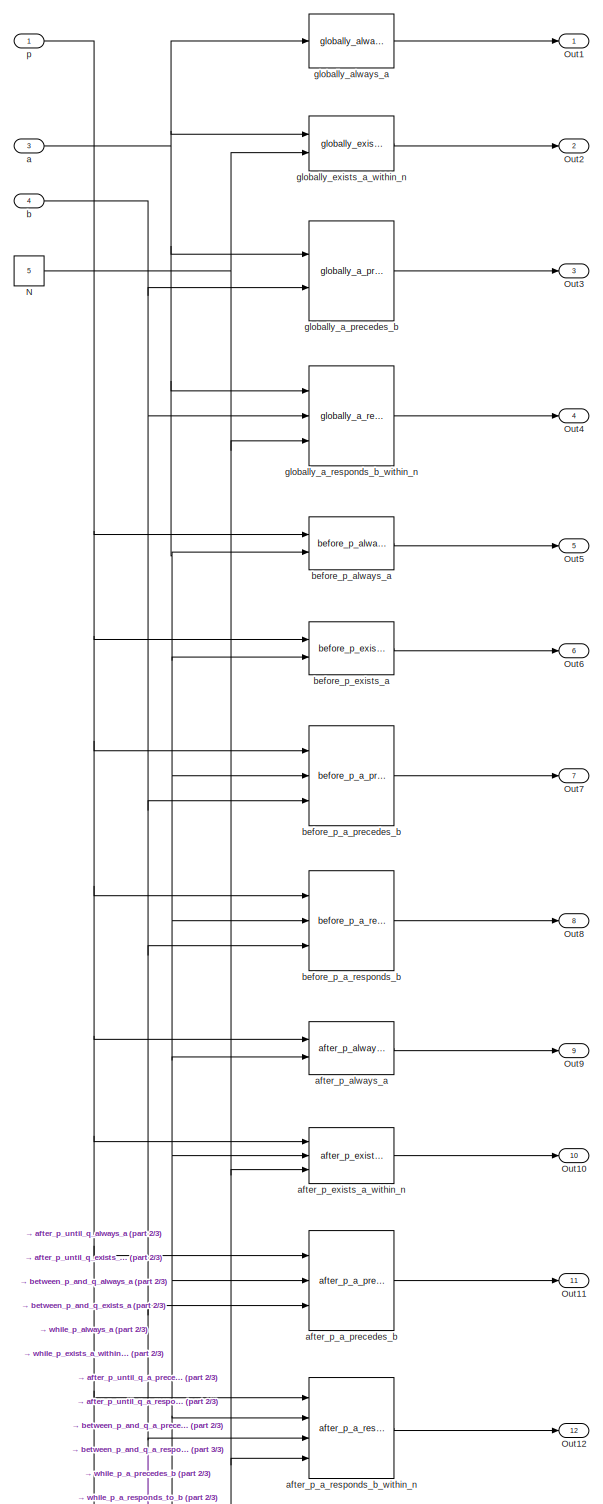
[diagram: root canvas - part 1/3, full width, top band]
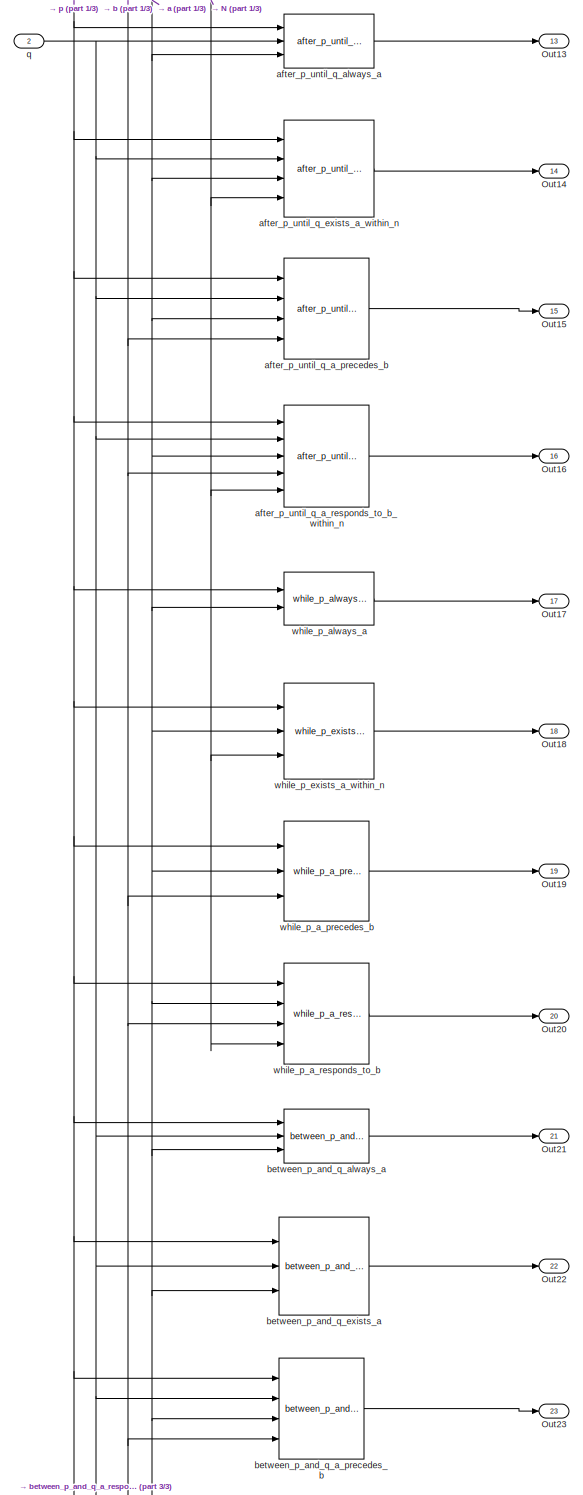
[diagram: root canvas - part 2/3, full width, bottom band]
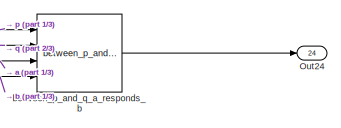
[diagram: root canvas - part 3/3, bottom right region]
MODEL slx_b7dc2ca83973
KIND model
BLOCK [Constant] N
  Value = 5
BLOCK [Outport] Out1
  IconDisplay = Port number
BLOCK [Outport] Out10
  IconDisplay = Port number
  Port = 10
BLOCK [Outport] Out11
  IconDisplay = Port number
  Port = 11
BLOCK [Outport] Out12
  IconDisplay = Port number
  Port = 12
BLOCK [Outport] Out13
  IconDisplay = Port number
  Port = 13
BLOCK [Outport] Out14
  IconDisplay = Port number
  Port = 14
BLOCK [Outport] Out15
  IconDisplay = Port number
  Port = 15
BLOCK [Outport] Out16
  IconDisplay = Port number
  Port = 16
BLOCK [Outport] Out17
  IconDisplay = Port number
  Port = 17
BLOCK [Outport] Out18
  IconDisplay = Port number
  Port = 18
BLOCK [Outport] Out19
  IconDisplay = Port number
  Port = 19
BLOCK [Outport] Out2
  IconDisplay = Port number
  Port = 2
BLOCK [Outport] Out20
  IconDisplay = Port number
  Port = 20
BLOCK [Outport] Out21
  IconDisplay = Port number
  Port = 21
BLOCK [Outport] Out22
  IconDisplay = Port number
  Port = 22
BLOCK [Outport] Out23
  IconDisplay = Port number
  Port = 23
BLOCK [Outport] Out24
  IconDisplay = Port number
  Port = 24
BLOCK [Outport] Out3
  IconDisplay = Port number
  Port = 3
BLOCK [Outport] Out4
  IconDisplay = Port number
  Port = 4
BLOCK [Outport] Out5
  IconDisplay = Port number
  Port = 5
BLOCK [Outport] Out6
  IconDisplay = Port number
  Port = 6
BLOCK [Outport] Out7
  IconDisplay = Port number
  Port = 7
BLOCK [Outport] Out8
  IconDisplay = Port number
  Port = 8
BLOCK [Outport] Out9
  IconDisplay = Port number
  Port = 9
BLOCK [Inport] a
  IconDisplay = Port number
  OutDataTypeStr = boolean
  Port = 3
BLOCK [Reference] after_p_a_precedes_b  REF=patterns_library/after_p_a_precedes_b  (lib defined in slx_1b5033acf6a4)
  Ports = [3, 1]
  SourceBlock = patterns_library/after_p_a_precedes_b
  SourceType = SubSystem
BLOCK [Reference] after_p_a_responds_b_within_n  REF=patterns_library/after_p_a_responds_b_within_n  (lib defined in slx_1b5033acf6a4)
  Ports = [4, 1]
  SourceBlock = patterns_library/after_p_a_responds_b_within_n
  SourceType = SubSystem
BLOCK [Reference] after_p_always_a  REF=patterns_library/after_p_always_a  (lib defined in slx_1b5033acf6a4)
  Ports = [2, 1]
  SourceBlock = patterns_library/after_p_always_a
  SourceType = SubSystem
BLOCK [Reference] after_p_exists_a_within_n  REF=patterns_library/after_p_exists_a_within_n  (lib defined in slx_1b5033acf6a4)
  Ports = [3, 1]
  SourceBlock = patterns_library/after_p_exists_a_within_n
  SourceType = SubSystem
BLOCK [Reference] after_p_until_q_a_precedes_b  REF=patterns_library/after_p_until_q_a_precedes_b  (lib defined in slx_1b5033acf6a4)
  Ports = [4, 1]
  SourceBlock = patterns_library/after_p_until_q_a_precedes_b
  SourceType = SubSystem
BLOCK [Reference] after_p_until_q_a_responds_to_b_within_n  REF=patterns_library/after_p_until_q_a_responds_to_b_within_n  (lib defined in slx_1b5033acf6a4)
  Ports = [5, 1]
  SourceBlock = patterns_library/after_p_until_q_a_responds_to_b_within_n
  SourceType = SubSystem
BLOCK [Reference] after_p_until_q_always_a  REF=patterns_library/after_p_until_q_always_a  (lib defined in slx_1b5033acf6a4)
  Ports = [3, 1]
  SourceBlock = patterns_library/after_p_until_q_always_a
  SourceType = SubSystem
BLOCK [Reference] after_p_until_q_exists_a_within_n  REF=patterns_library/after_p_until_q_exists_a_within_n  (lib defined in slx_1b5033acf6a4)
  Ports = [4, 1]
  SourceBlock = patterns_library/after_p_until_q_exists_a_within_n
  SourceType = SubSystem
BLOCK [Inport] b
  IconDisplay = Port number
  OutDataTypeStr = boolean
  Port = 4
BLOCK [Reference] before_p_a_precedes_b  REF=patterns_library/before_p_a_precedes_b  (lib defined in slx_1b5033acf6a4)
  Ports = [3, 1]
  SourceBlock = patterns_library/before_p_a_precedes_b
  SourceType = SubSystem
BLOCK [Reference] before_p_a_responds_b  REF=patterns_library/before_p_a_responds_b  (lib defined in slx_1b5033acf6a4)
  Ports = [3, 1]
  SourceBlock = patterns_library/before_p_a_responds_b
  SourceType = SubSystem
BLOCK [Reference] before_p_always_a  REF=patterns_library/before_p_always_a  (lib defined in slx_1b5033acf6a4)
  Ports = [2, 1]
  SourceBlock = patterns_library/before_p_always_a
  SourceType = SubSystem
BLOCK [Reference] before_p_exists_a  REF=patterns_library/before_p_exists_a  (lib defined in slx_1b5033acf6a4)
  Ports = [2, 1]
  SourceBlock = patterns_library/before_p_exists_a
  SourceType = SubSystem
BLOCK [Reference] between_p_and_q_a_precedes_b  REF=patterns_library/between_p_and_q_a_precedes_b  (lib defined in slx_1b5033acf6a4)
  Ports = [4, 1]
  SourceBlock = patterns_library/between_p_and_q_a_precedes_b
  SourceType = SubSystem
BLOCK [Reference] between_p_and_q_a_responds_b  REF=patterns_library/between_p_and_q_a_responds_b  (lib defined in slx_1b5033acf6a4)
  Ports = [4, 1]
  SourceBlock = patterns_library/between_p_and_q_a_responds_b
  SourceType = SubSystem
BLOCK [Reference] between_p_and_q_always_a  REF=patterns_library/between_p_and_q_always_a  (lib defined in slx_1b5033acf6a4)
  Ports = [3, 1]
  SourceBlock = patterns_library/between_p_and_q_always_a
  SourceType = SubSystem
BLOCK [Reference] between_p_and_q_exists_a  REF=patterns_library/between_p_and_q_exists_a  (lib defined in slx_1b5033acf6a4)
  Ports = [3, 1]
  SourceBlock = patterns_library/between_p_and_q_exists_a
  SourceType = SubSystem
BLOCK [Reference] globally_a_precedes_b  REF=patterns_library/globally_a_precedes_b  (lib defined in slx_1b5033acf6a4)
  Ports = [2, 1]
  SourceBlock = patterns_library/globally_a_precedes_b
  SourceType = SubSystem
BLOCK [Reference] globally_a_responds_b_within_n  REF=patterns_library/globally_a_responds_b_within_n  (lib defined in slx_1b5033acf6a4)
  Ports = [3, 1]
  SourceBlock = patterns_library/globally_a_responds_b_within_n
  SourceType = SubSystem
BLOCK [Reference] globally_always_a  REF=patterns_library/globally_always_a  (lib defined in slx_1b5033acf6a4)
  Ports = [1, 1]
  SourceBlock = patterns_library/globally_always_a
  SourceType = SubSystem
BLOCK [Reference] globally_exists_a_within_n  REF=patterns_library/globally_exists_a_within_n  (lib defined in slx_1b5033acf6a4)
  Ports = [2, 1]
  SourceBlock = patterns_library/globally_exists_a_within_n
  SourceType = SubSystem
BLOCK [Inport] p
  IconDisplay = Port number
  OutDataTypeStr = boolean
BLOCK [Inport] q
  IconDisplay = Port number
  OutDataTypeStr = boolean
  Port = 2
BLOCK [Reference] while_p_a_precedes_b  REF=patterns_library/while_p_a_precedes_b  (lib defined in slx_1b5033acf6a4)
  Ports = [3, 1]
  SourceBlock = patterns_library/while_p_a_precedes_b
  SourceType = SubSystem
BLOCK [Reference] while_p_a_responds_to_b  REF=patterns_library/while_p_a_responds_to_b  (lib defined in slx_1b5033acf6a4)
  Ports = [4, 1]
  SourceBlock = patterns_library/while_p_a_responds_to_b
  SourceType = SubSystem
BLOCK [Reference] while_p_always_a  REF=patterns_library/while_p_always_a  (lib defined in slx_1b5033acf6a4)
  Ports = [2, 1]
  SourceBlock = patterns_library/while_p_always_a
  SourceType = SubSystem
BLOCK [Reference] while_p_exists_a_within_n  REF=patterns_library/while_p_exists_a_within_n  (lib defined in slx_1b5033acf6a4)
  Ports = [3, 1]
  SourceBlock = patterns_library/while_p_exists_a_within_n
  SourceType = SubSystem
NET N:1 -> after_p_a_responds_b_within_n:4, after_p_exists_a_within_n:3, after_p_until_q_a_responds_to_b_within_n:5, after_p_until_q_exists_a_within_n:4, globally_a_responds_b_within_n:3, globally_exists_a_within_n:2, while_p_a_responds_to_b:4, while_p_exists_a_within_n:3
NET a:1 -> after_p_a_precedes_b:2, after_p_a_responds_b_within_n:2, after_p_always_a:2, after_p_exists_a_within_n:2, after_p_until_q_a_precedes_b:3, after_p_until_q_a_responds_to_b_within_n:3, after_p_until_q_always_a:3, after_p_until_q_exists_a_within_n:3, before_p_a_precedes_b:2, before_p_a_responds_b:2, before_p_always_a:2, before_p_exists_a:2, between_p_and_q_a_precedes_b:3, between_p_and_q_a_responds_b:3, between_p_and_q_always_a:3, between_p_and_q_exists_a:3, globally_a_precedes_b:1, globally_a_responds_b_within_n:1, globally_always_a:1, globally_exists_a_within_n:1, while_p_a_precedes_b:2, while_p_a_responds_to_b:2, while_p_always_a:2, while_p_exists_a_within_n:2
LINE after_p_a_precedes_b:1 -> Out11:1
LINE after_p_a_responds_b_within_n:1 -> Out12:1
LINE after_p_always_a:1 -> Out9:1
LINE after_p_exists_a_within_n:1 -> Out10:1
LINE after_p_until_q_a_precedes_b:1 -> Out15:1
LINE after_p_until_q_a_responds_to_b_within_n:1 -> Out16:1
LINE after_p_until_q_always_a:1 -> Out13:1
LINE after_p_until_q_exists_a_within_n:1 -> Out14:1
NET b:1 -> after_p_a_precedes_b:3, after_p_a_responds_b_within_n:3, after_p_until_q_a_precedes_b:4, after_p_until_q_a_responds_to_b_within_n:4, before_p_a_precedes_b:3, before_p_a_responds_b:3, between_p_and_q_a_precedes_b:4, between_p_and_q_a_responds_b:4, globally_a_precedes_b:2, globally_a_responds_b_within_n:2, while_p_a_precedes_b:3, while_p_a_responds_to_b:3
LINE before_p_a_precedes_b:1 -> Out7:1
LINE before_p_a_responds_b:1 -> Out8:1
LINE before_p_always_a:1 -> Out5:1
LINE before_p_exists_a:1 -> Out6:1
LINE between_p_and_q_a_precedes_b:1 -> Out23:1
LINE between_p_and_q_a_responds_b:1 -> Out24:1
LINE between_p_and_q_always_a:1 -> Out21:1
LINE between_p_and_q_exists_a:1 -> Out22:1
LINE globally_a_precedes_b:1 -> Out3:1
LINE globally_a_responds_b_within_n:1 -> Out4:1
LINE globally_always_a:1 -> Out1:1
LINE globally_exists_a_within_n:1 -> Out2:1
NET p:1 -> after_p_a_precedes_b:1, after_p_a_responds_b_within_n:1, after_p_always_a:1, after_p_exists_a_within_n:1, after_p_until_q_a_precedes_b:1, after_p_until_q_a_responds_to_b_within_n:1, after_p_until_q_always_a:1, after_p_until_q_exists_a_within_n:1, before_p_a_precedes_b:1, before_p_a_responds_b:1, before_p_always_a:1, before_p_exists_a:1, between_p_and_q_a_precedes_b:1, between_p_and_q_a_responds_b:1, between_p_and_q_always_a:1, between_p_and_q_exists_a:1, while_p_a_precedes_b:1, while_p_a_responds_to_b:1, while_p_always_a:1, while_p_exists_a_within_n:1
NET q:1 -> after_p_until_q_a_precedes_b:2, after_p_until_q_a_responds_to_b_within_n:2, after_p_until_q_always_a:2, after_p_until_q_exists_a_within_n:2, between_p_and_q_a_precedes_b:2, between_p_and_q_a_responds_b:2, between_p_and_q_always_a:2, between_p_and_q_exists_a:2
LINE while_p_a_precedes_b:1 -> Out19:1
LINE while_p_a_responds_to_b:1 -> Out20:1
LINE while_p_always_a:1 -> Out17:1
LINE while_p_exists_a_within_n:1 -> Out18:1
note: NET lines group one-source signal fan-out (src -> all destinations, sorted); 1:1 wires keep LINE
